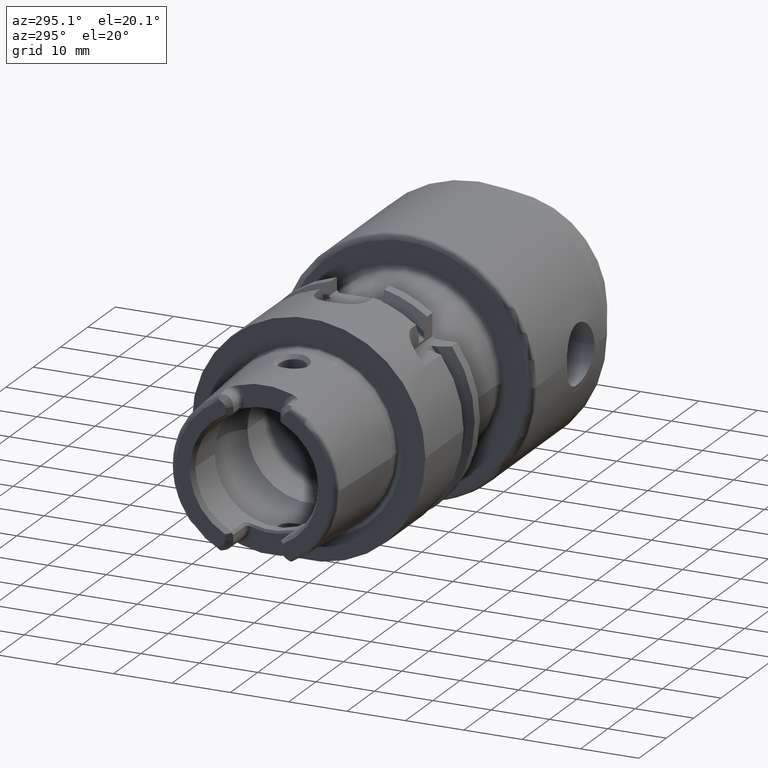
[diagram: clean part render]
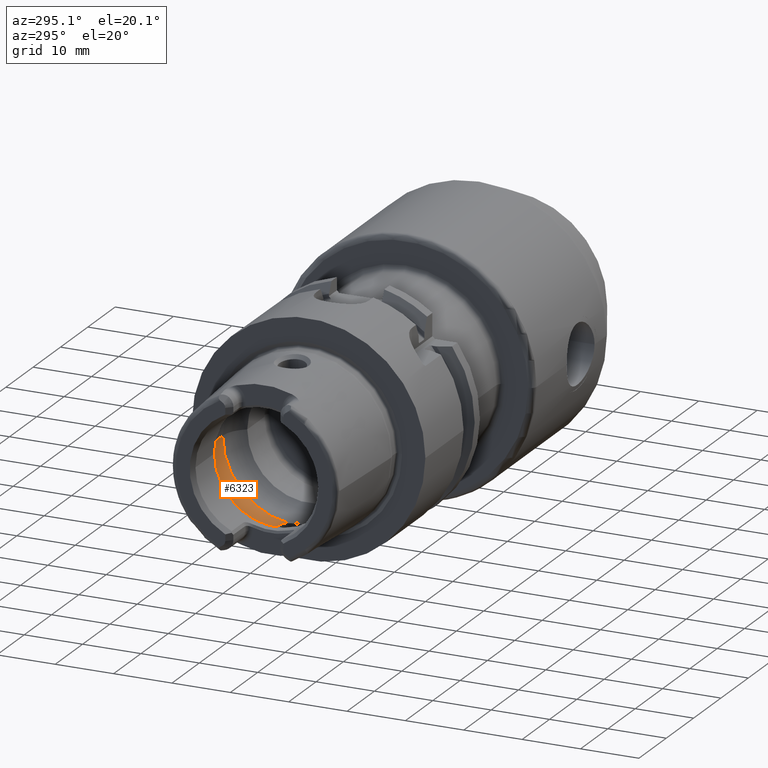
[diagram: same view with one face highlighted and labeled with its STEP entity id]
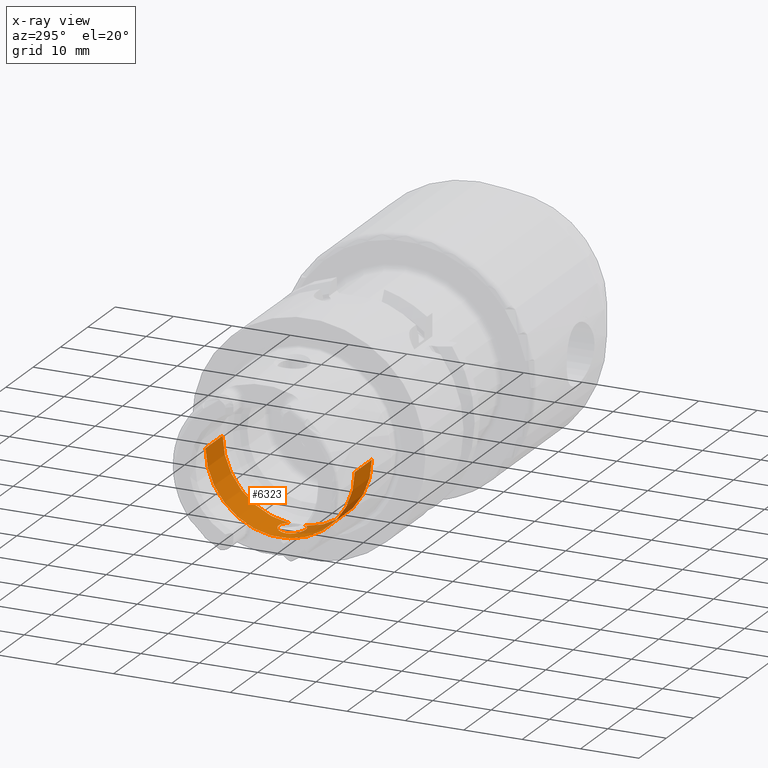
[diagram: x-ray of the same camera — body ghosted, the highlighted face saturated]
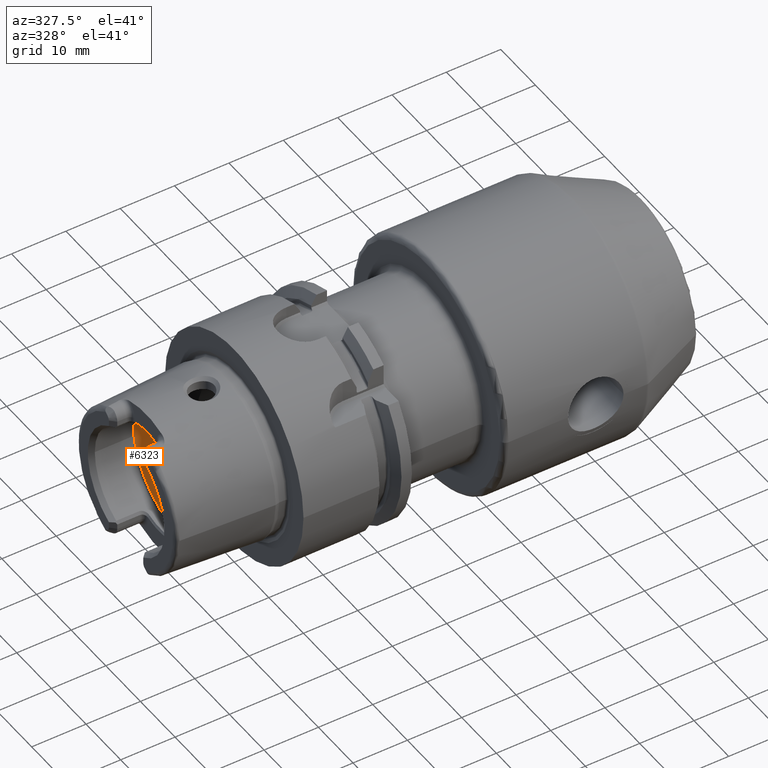
[diagram: same view with one face highlighted and labeled with its STEP entity id]
A machine part, auxiliary view. The second image highlights one B-rep face of the part: STEP entity #6323.
The next image is the same camera in x-ray: the body ghosted, the highlighted face saturated — about 5% of this face is hidden behind the body in this view.
A second angle (auxiliary view) of the same face is appended — the face is thin or edge-on in the first view.
In plain terms, the highlighted cylindrical surface (partial cylindrical patch) has radius 12.7825 mm, axis along (1, 0, 0).
Its self-contained STEP definition (entity closure, byte-faithful):
#2419=CARTESIAN_POINT('',(-8.3E0,0.E0,-1.27825E1));
#2420=CARTESIAN_POINT('',(-8.3E0,1.427133188728E-1,-1.27825E1));
#2421=CARTESIAN_POINT('',(-8.274458641874E0,4.251001717398E-1,
-1.277785723202E1));
#2422=CARTESIAN_POINT('',(-8.150394164702E0,8.552839426964E-1,
-1.275610601200E1));
#2423=CARTESIAN_POINT('',(-7.951233537966E0,1.243083672227E0,
-1.272367412636E1));
#2424=CARTESIAN_POINT('',(-7.683823374207E0,1.586566955446E0,
-1.268498775870E1));
#2425=CARTESIAN_POINT('',(-7.359422530705E0,1.872091172279E0,
-1.264553412780E1));
#2426=CARTESIAN_POINT('',(-6.982163681121E0,2.095136224183E0,
-1.261009634872E1));
#2427=CARTESIAN_POINT('',(-6.566185328218E0,2.244067880612E0,
-1.258412352868E1));
#2428=CARTESIAN_POINT('',(-6.121061199087E0,2.311297649599E0,
-1.257179286987E1));
#2429=CARTESIAN_POINT('',(-5.676149668416E0,2.291600775933E0,
-1.257544742117E1));
#2430=CARTESIAN_POINT('',(-5.240803066666E0,2.186172578759E0,
-1.259443444977E1));
#2431=CARTESIAN_POINT('',(-4.838465041535E0,2.001728357804E0,
-1.262546966230E1));
#2432=CARTESIAN_POINT('',(-4.474710635944E0,1.740330157612E0,
-1.266460428970E1));
#2433=CARTESIAN_POINT('',(-4.274315380227E0,1.527743108869E0,
-1.269142200136E1));
#2434=CARTESIAN_POINT('',(-4.183373967266E0,1.410627469318E0,
-1.270442585845E1));
#2436=CARTESIAN_POINT('',(-4.183373967266E0,-1.410627469318E0,
-1.270442585845E1));
#2437=CARTESIAN_POINT('',(-4.274845955483E0,-1.528426391198E0,
-1.269134613356E1));
#2438=CARTESIAN_POINT('',(-4.476491226172E0,-1.742090205474E0,
-1.266437178853E1));
#2439=CARTESIAN_POINT('',(-4.842646105186E0,-2.004342770073E0,
-1.262505738972E1));
#2440=CARTESIAN_POINT('',(-5.247827202409E0,-2.188744995502E0,
-1.259398490958E1));
#2441=CARTESIAN_POINT('',(-5.685427416822E0,-2.293035858915E0,
-1.257518281515E1));
#2442=CARTESIAN_POINT('',(-6.133451184281E0,-2.310864424800E0,
-1.257187378090E1));
#2443=CARTESIAN_POINT('',(-6.582147233013E0,-2.240218352866E0,
-1.258482191328E1));
#2444=CARTESIAN_POINT('',(-6.998693660149E0,-2.087278659283E0,
-1.261141600658E1));
#2445=CARTESIAN_POINT('',(-7.372074513933E0,-1.862552087409E0,
-1.264694519423E1));
#2446=CARTESIAN_POINT('',(-7.691929393806E0,-1.577604060499E0,
-1.268609675560E1));
#2447=CARTESIAN_POINT('',(-7.955958524980E0,-1.235316293050E0,
-1.272441651818E1));
#2448=CARTESIAN_POINT('',(-8.152624433271E0,-8.492189308007E-1,
-1.275649065444E1));
#2449=CARTESIAN_POINT('',(-8.274974683889E0,-4.212871182657E-1,
-1.277795139359E1));
#2450=CARTESIAN_POINT('',(-8.3E0,-1.413211866780E-1,-1.27825E1));
#2451=CARTESIAN_POINT('',(-8.3E0,0.E0,-1.27825E1));
#2453=CARTESIAN_POINT('',(-4.183373967266E0,0.E0,0.E0));
#2454=DIRECTION('',(-1.E0,0.E0,0.E0));
#2455=DIRECTION('',(0.E0,-1.103561485873E-1,-9.938921070564E-1));
#2456=AXIS2_PLACEMENT_3D('',#2453,#2454,#2455);
#2458=DIRECTION('',(-1.E0,0.E0,0.E0));
#2459=VECTOR('',#2458,6.265234204822E0);
#2460=CARTESIAN_POINT('',(-4.183373967266E0,-1.27825E1,0.E0));
#2461=LINE('',#2460,#2459);
#2462=DIRECTION('',(-1.E0,0.E0,0.E0));
#2463=VECTOR('',#2462,6.265234204822E0);
#2464=CARTESIAN_POINT('',(-4.183373967266E0,1.27825E1,0.E0));
#2465=LINE('',#2464,#2463);
#2466=CARTESIAN_POINT('',(-4.183373967266E0,0.E0,0.E0));
#2467=DIRECTION('',(-1.E0,0.E0,0.E0));
#2468=DIRECTION('',(0.E0,1.E0,0.E0));
#2469=AXIS2_PLACEMENT_3D('',#2466,#2467,#2468);
#2471=CARTESIAN_POINT('',(-4.183373967266E0,1.410627469318E0,
-1.270442585845E1));
#2501=CARTESIAN_POINT('',(-4.183373967266E0,-1.410627469318E0,
-1.270442585845E1));
#2704=CARTESIAN_POINT('',(-1.044860817209E1,0.E0,0.E0));
#2705=DIRECTION('',(-1.E0,0.E0,0.E0));
#2706=DIRECTION('',(0.E0,1.E0,0.E0));
#2707=AXIS2_PLACEMENT_3D('',#2704,#2705,#2706);
#3271=CARTESIAN_POINT('',(-8.3E0,0.E0,-1.27825E1));
#3272=VERTEX_POINT('',#3271);
#3285=CARTESIAN_POINT('',(-4.183373967266E0,1.27825E1,0.E0));
#3286=VERTEX_POINT('',#3285);
#3287=CARTESIAN_POINT('',(-1.044860817209E1,1.27825E1,0.E0));
#3288=VERTEX_POINT('',#3287);
#3297=CARTESIAN_POINT('',(-4.183373967266E0,-1.27825E1,0.E0));
#3298=VERTEX_POINT('',#3297);
#3299=CARTESIAN_POINT('',(-1.044860817209E1,-1.27825E1,0.E0));
#3300=VERTEX_POINT('',#3299);
#3317=VERTEX_POINT('',#2471);
#3318=VERTEX_POINT('',#2501);
#6306=CARTESIAN_POINT('',(-2.12925E1,0.E0,0.E0));
#6307=DIRECTION('',(1.E0,0.E0,0.E0));
#6308=DIRECTION('',(0.E0,-1.E0,0.E0));
#6309=AXIS2_PLACEMENT_3D('',#6306,#6307,#6308);
#6310=CYLINDRICAL_SURFACE('',#6309,1.27825E1);
#6311=ORIENTED_EDGE('',*,*,#6260,.F.);
#6312=ORIENTED_EDGE('',*,*,#6052,.F.);
#6314=ORIENTED_EDGE('',*,*,#6313,.T.);
#6315=ORIENTED_EDGE('',*,*,#6299,.T.);
#6317=ORIENTED_EDGE('',*,*,#6316,.F.);
#6318=ORIENTED_EDGE('',*,*,#6295,.F.);
#6320=ORIENTED_EDGE('',*,*,#6319,.T.);
#6321=EDGE_LOOP('',(#6311,#6312,#6314,#6315,#6317,#6318,#6320));
#6322=FACE_OUTER_BOUND('',#6321,.F.);
#6323=ADVANCED_FACE('',(#6322),#6310,.F.);
#2435=B_SPLINE_CURVE_WITH_KNOTS('',3,(#2419,#2420,#2421,#2422,#2423,#2424,#2425,
#2426,#2427,#2428,#2429,#2430,#2431,#2432,#2433,#2434),.UNSPECIFIED.,.F.,.F.,(4,
1,1,1,1,1,1,1,1,1,1,1,1,4),(0.E0,7.692307692308E-2,1.538461538462E-1,
2.307692307692E-1,3.076923076923E-1,3.846153846154E-1,4.615384615385E-1,
5.384615384615E-1,6.153846153846E-1,6.923076923077E-1,7.692307692308E-1,
8.461538461538E-1,9.230769230769E-1,1.E0),.UNSPECIFIED.);
#2452=B_SPLINE_CURVE_WITH_KNOTS('',3,(#2436,#2437,#2438,#2439,#2440,#2441,#2442,
#2443,#2444,#2445,#2446,#2447,#2448,#2449,#2450,#2451),.UNSPECIFIED.,.F.,.F.,(4,
1,1,1,1,1,1,1,1,1,1,1,1,4),(0.E0,7.692307692308E-2,1.538461538462E-1,
2.307692307692E-1,3.076923076923E-1,3.846153846154E-1,4.615384615385E-1,
5.384615384615E-1,6.153846153846E-1,6.923076923077E-1,7.692307692308E-1,
8.461538461538E-1,9.230769230769E-1,1.E0),.UNSPECIFIED.);
#2457=CIRCLE('',#2456,1.27825E1);
#2470=CIRCLE('',#2469,1.27825E1);
#2708=CIRCLE('',#2707,1.27825E1);
#6052=EDGE_CURVE('',#3318,#3272,#2452,.T.);
#6260=EDGE_CURVE('',#3272,#3317,#2435,.T.);
#6295=EDGE_CURVE('',#3286,#3288,#2465,.T.);
#6299=EDGE_CURVE('',#3298,#3300,#2461,.T.);
#6313=EDGE_CURVE('',#3318,#3298,#2457,.T.);
#6316=EDGE_CURVE('',#3288,#3300,#2708,.T.);
#6319=EDGE_CURVE('',#3286,#3317,#2470,.T.);